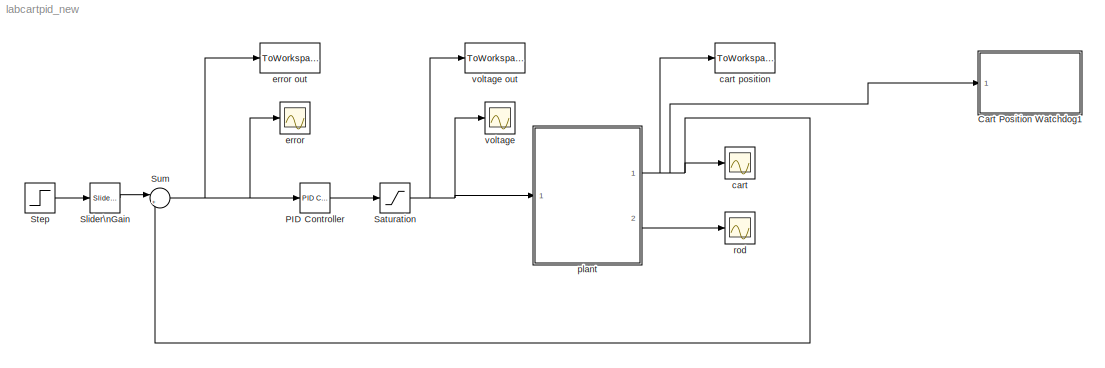
MODEL labcartpid_new
KIND model
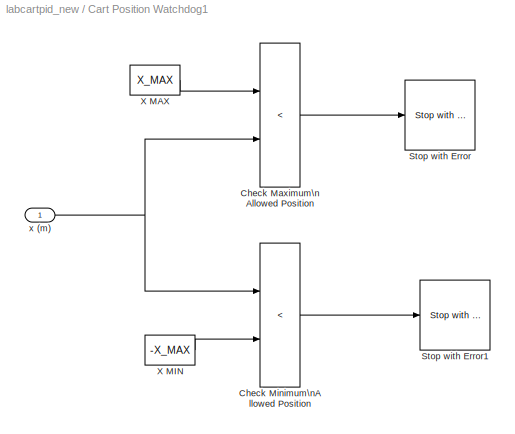
BLOCK [SubSystem] Cart Position Watchdog1
  Ports = [1]
  RequestExecContextInheritance = off
  SID = 48
  TreatAsAtomicUnit = on
BLOCK [RelationalOperator] Cart Position Watchdog1/Check Maximum\nAllowed Position
  Operator = <
  Ports = [2, 1]
  SID = 51
BLOCK [RelationalOperator] Cart Position Watchdog1/Check Minimum\nAllowed Position
  Operator = <
  Ports = [2, 1]
  SID = 52
BLOCK [Reference] Cart Position Watchdog1/Stop with Error  REF=quarc_library/Sinks/Error Handling/Stop with Error
  AttributesFormatString = \"%<message>\"
  MultiThreadCoSim = auto
  Ports = [1]
  SID = 53
  SourceBlock = quarc_library/Sinks/Error Handling/Stop with Error
  SourceProductName = QUARC Targets
  SourceType = Stop with Error
  message = Maximum Limit Reached
  message_type = Fixed error message
BLOCK [Reference] Cart Position Watchdog1/Stop with Error1  REF=quarc_library/Sinks/Error Handling/Stop with Error
  AttributesFormatString = \"%<message>\"
  MultiThreadCoSim = auto
  Ports = [1]
  SID = 54
  SourceBlock = quarc_library/Sinks/Error Handling/Stop with Error
  SourceProductName = QUARC Targets
  SourceType = Stop with Error
  message = Minimum Limit Reached
  message_type = Fixed error message
BLOCK [Constant] Cart Position Watchdog1/X MAX
  SID = 55
  Value = X_MAX
BLOCK [Constant] Cart Position Watchdog1/X MIN
  SID = 56
  Value = -X_MAX
BLOCK [Inport] Cart Position Watchdog1/x (m)
  SID = 49
BLOCK [Reference] PID Controller  REF=simulink_need_slupdate/PID Controller
  D = 10
  I = 2
  P = 80
  Ports = [1, 1]
  RTWMemSecDataConstants = Inherit from model
  RTWMemSecDataInternal = Inherit from model
  RTWMemSecDataParameters = Inherit from model
  RTWMemSecFuncExecute = Inherit from model
  RTWMemSecFuncInitTerm = Inherit from model
  SID = 1
  SourceBlock = simulink_need_slupdate/PID Controller
  SourceProductBaseCode = SL
  SourceType = PID Controller
BLOCK [Saturate] Saturation
  LowerLimit = -6
  SID = 2
  UpperLimit = 6
BLOCK [Reference] Slider\nGain  REF=simulink/Math\nOperations/Slider\nGain
  Ports = [1, 1]
  RTWMemSecDataConstants = Inherit from model
  RTWMemSecDataInternal = Inherit from model
  RTWMemSecDataParameters = Inherit from model
  RTWMemSecFuncExecute = Inherit from model
  RTWMemSecFuncInitTerm = Inherit from model
  SID = 3
  SourceBlock = simulink/Math\nOperations/Slider\nGain
  SourceProductBaseCode = SL
  SourceType = Slider Gain
  gain = 0.500
  high = 0.5
  low = -0.2
BLOCK [Step] Step
  After = 1.0
  SID = 4
  SampleTime = 0
  Time = 0
BLOCK [Sum] Sum
  Inputs = |+-
  Ports = [2, 1]
  SID = 5
BLOCK [Scope] cart
  Floating = off
  NumInputPorts = 1
  Ports = [1]
  SID = 6
  ScopeSpecificationString = Simulink.scopes.TimeScopeBlockCfg('CurrentConfiguration', extmgr.ConfigurationSet(extmgr.Configuration('Core','General UI',true),extmgr.Configuration('Core','Source UI',true),extmgr.Configuration('Sources','WiredSimulink',true,'DataLoggingSaveFormat','StructureWithTime','DataLoggingDecimation','1','DataLogging',true,'DataLoggingVariableName','Cartposition'),extmgr.Configuration('Visuals','Time Dom...<+1683ch>
BLOCK [ToWorkspace] cart position
  MaxDataPoints = inf
  Ports = [1]
  SID = 7
  SampleTime = -1
  SaveFormat = Structure With Time
  VariableName = y
BLOCK [Scope] error
  Floating = off
  NumInputPorts = 1
  Ports = [1]
  SID = 8
  ScopeSpecificationString = Simulink.scopes.TimeScopeBlockCfg('CurrentConfiguration', extmgr.ConfigurationSet(extmgr.Configuration('Core','General UI',true),extmgr.Configuration('Core','Source UI',true),extmgr.Configuration('Sources','WiredSimulink',true,'DataLoggingVariableName','ScopeData3','DataLoggingSaveFormat','StructureWithTime','DataLoggingLimitDataPoints',true,'DataLoggingDecimation','1','DataLoggingDecimateData',tr...<+910ch>
BLOCK [ToWorkspace] error out
  MaxDataPoints = inf
  Ports = [1]
  SID = 9
  SampleTime = -1
  SaveFormat = Structure
  VariableName = e
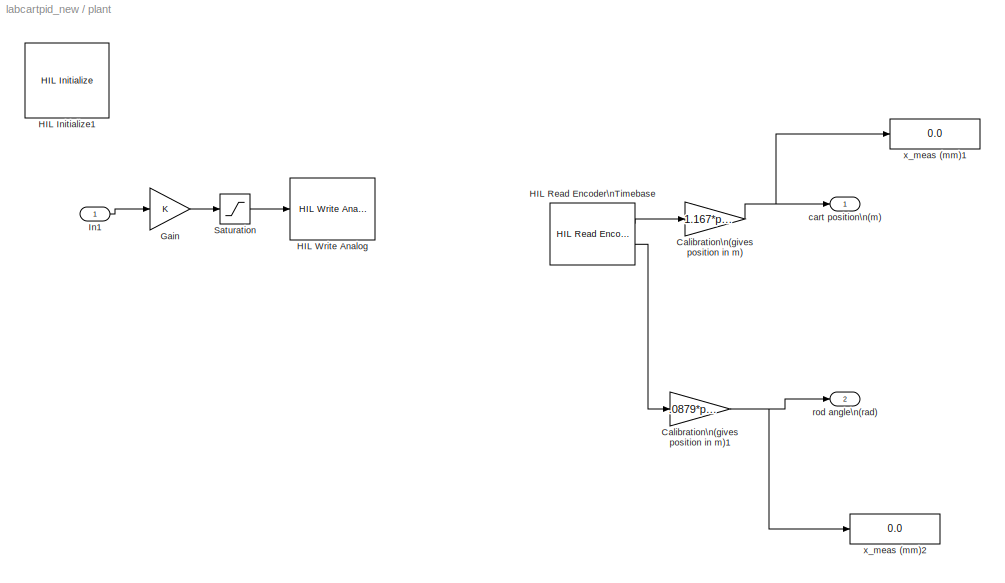
BLOCK [SubSystem] plant
  Ports = [1, 2]
  RequestExecContextInheritance = off
  SID = 10
BLOCK [Gain] plant/Calibration\n(gives position in  m)
  Gain = 1.167*pi*2.54/4096/100
  OutDataTypeStr = Inherit: Same as input
  ParamDataTypeStr = Inherit: Same as input
  SID = 37
  SaturateOnIntegerOverflow = on
BLOCK [Gain] plant/Calibration\n(gives position in  m)1
  Gain = .0879*pi/180
  OutDataTypeStr = Inherit: Same as input
  ParamDataTypeStr = Inherit: Same as input
  SID = 38
  SaturateOnIntegerOverflow = on
BLOCK [Gain] plant/Gain
  OutDataTypeStr = Inherit: Same as input
  ParamDataTypeStr = Inherit: Same as input
  SID = 39
  SaturateOnIntegerOverflow = on
BLOCK [Reference] plant/HIL Initialize1  REF=quarc_library/Data Acquisition/Generic/Configuration/HIL Initialize
  AttributesFormatString = %<object_name> (%<board_type>-%<board_number>)
  MultiThreadCoSim = auto
  Ports = []
  SID = 40
  SourceBlock = quarc_library/Data Acquisition/Generic/Configuration/HIL Initialize
  SourceProductName = QUARC Targets
  SourceType = HIL Initialize
  UserData = DataTag0
  UserDataPersistent = on
  active = off
  analog_input_channels = [0:3]
  analog_input_configurations = []
  analog_input_maximums = 10
  analog_input_minimums = -10
  analog_output_channels = [0:3]
  analog_output_maximums = [10]
  analog_output_minimums = [-10]
  board_number = 0
  board_type = q4
  clock_modes = [0 0]
  digital_input_channels = [8:15]
  digital_output_channels = [0:7]
  digital_output_configuration = []
  encoder_channels = [0:3]
  encoder_filter_frequency = (1/60e-9)/1
  exclusive = off
  final_analog_outputs = [0]
  final_digital_outputs = [0]
  final_other_outputs = []
  final_pwm_outputs = [0]
  hardware_clocks = [0:1]
  initial_analog_outputs = [0]
  initial_clock_frequencies = []
  initial_digital_outputs = [0]
  initial_encoder_counts = [0]
  initial_other_outputs = []
  initial_pwm_outputs = [0]
  object_name = HIL-1
  other_output_channels = []
  pwm_alignment = []
  pwm_channels = []
  pwm_configuration = []
  pwm_frequency = (1/60e-9)/1024
  pwm_leading_deadband = []
  pwm_modes = [0]
  pwm_polarity = []
  pwm_trailing_deadband = []
  quadrature = [4]
  set_analog_input_params_at_start = off
  set_analog_input_params_at_switch_in = off
  set_analog_output_params_at_start = on
  set_analog_output_params_at_switch_in = off
  set_analog_outputs_at_start = on
  set_analog_outputs_at_switch_in = off
  set_analog_outputs_at_switch_out = off
  set_analog_outputs_at_terminate = on
  set_analog_outputs_on_watchdog = off
  set_clock_frequencies_at_start = off
  set_clock_frequencies_at_switch_in = off
  set_clock_params_at_start = on
  set_clock_params_at_switch_in = off
  set_digital_output_params_at_start = off
  set_digital_output_params_at_switch_in = off
  set_digital_outputs_at_start = on
  set_digital_outputs_at_switch_in = off
  set_digital_outputs_at_switch_out = off
  set_digital_outputs_at_terminate = on
  set_digital_outputs_on_watchdog = off
  set_encoder_counts_at_start = on
  set_encoder_counts_at_switch_in = off
  set_encoder_params_at_start = on
  set_encoder_params_at_switch_in = off
  set_other_outputs_at_start = off
  set_other_outputs_at_switch_in = off
  set_other_outputs_at_switch_out = off
  set_other_outputs_at_terminate = off
  set_other_outputs_on_watchdog = off
  set_pwm_outputs_at_start = on
  set_pwm_outputs_at_switch_in = off
  set_pwm_outputs_at_switch_out = off
  set_pwm_outputs_at_terminate = on
  set_pwm_outputs_on_watchdog = off
  set_pwm_params_at_start = on
  set_pwm_params_at_switch_in = off
  watchdog_analog_outputs = 0
  watchdog_digital_outputs = [2]
  watchdog_other_outputs = []
  watchdog_pwm_outputs = []
BLOCK [Reference] plant/HIL Read Encoder\nTimebase  REF=quarc_library/Data Acquisition/Generic/Timebases/HIL Read Encoder\nTimebase
  AttributesFormatString = (%<object_name>)
  MultiThreadCoSim = auto
  Ports = [0, 2]
  SID = 41
  SourceBlock = quarc_library/Data Acquisition/Generic/Timebases/HIL Read Encoder\nTimebase
  SourceProductName = QUARC Targets
  SourceType = HIL Read Encoder Timebase
  UserData = DataTag1
  UserDataPersistent = on
  active = on
  channels = [0,1]
  clock = 1
  data_type = double
  data_type_mode = Inherit via back propagation
  object_name = HIL-1
  overflow_mode = Error on overflow
  samples_in_buffer = max(ceil(1/qc_get_step_size), 1)
  vector_output = off
BLOCK [Reference] plant/HIL Write Analog  REF=quarc_library/Data Acquisition/Generic/Immediate I//O/HIL Write Analog
  AttributesFormatString = (%<object_name>)
  MultiThreadCoSim = auto
  Ports = [1]
  SID = 42
  SourceBlock = quarc_library/Data Acquisition/Generic/Immediate I//O/HIL Write Analog
  SourceProductName = QUARC Targets
  SourceType = HIL Write Analog
  UserData = DataTag2
  UserDataPersistent = on
  active = off
  channels = 0
  object_name = HIL-1
  sample_time = -1
  vector_input = on
BLOCK [Inport] plant/In1
  SID = 36
BLOCK [Saturate] plant/Saturation
  LowerLimit = -6
  SID = 43
  UpperLimit = 6
BLOCK [Outport] plant/cart position\n(m)
  SID = 46
BLOCK [Outport] plant/rod angle\n(rad)
  Port = 2
  SID = 47
BLOCK [Display] plant/x_meas (mm)1
  Decimation = 100
  Ports = [1]
  SID = 44
BLOCK [Display] plant/x_meas (mm)2
  Decimation = 100
  Ports = [1]
  SID = 45
BLOCK [Scope] rod
  Floating = off
  NumInputPorts = 1
  Ports = [1]
  SID = 21
  ScopeSpecificationString = Simulink.scopes.TimeScopeBlockCfg('CurrentConfiguration', extmgr.ConfigurationSet(extmgr.Configuration('Core','General UI',true),extmgr.Configuration('Core','Source UI',true),extmgr.Configuration('Sources','WiredSimulink',true,'DataLoggingVariableName','ScopeData1','DataLoggingSaveFormat','StructureWithTime','DataLoggingDecimation','1','DataLoggingDecimateData',true,'DataLogging',true),extmgr.Conf...<+1689ch>
BLOCK [Scope] voltage
  Floating = off
  NumInputPorts = 1
  Ports = [1]
  SID = 22
  ScopeSpecificationString = Simulink.scopes.TimeScopeBlockCfg('CurrentConfiguration', extmgr.ConfigurationSet(extmgr.Configuration('Core','General UI',true),extmgr.Configuration('Core','Source UI',true),extmgr.Configuration('Sources','WiredSimulink',true,'DataLoggingVariableName','ScopeData2','DataLoggingSaveFormat','StructureWithTime','DataLoggingLimitDataPoints',true,'DataLoggingDecimation','1','DataLoggingDecimateData',tr...<+910ch>
BLOCK [ToWorkspace] voltage out
  MaxDataPoints = inf
  Ports = [1]
  SID = 23
  SampleTime = -1
  SaveFormat = Structure
  VariableName = v
LINE Cart Position Watchdog1/Check Maximum\nAllowed Position:1 -> Cart Position Watchdog1/Stop with Error:1
LINE Cart Position Watchdog1/Check Minimum\nAllowed Position:1 -> Cart Position Watchdog1/Stop with Error1:1
LINE Cart Position Watchdog1/X MAX:1 -> Cart Position Watchdog1/Check Maximum\nAllowed Position:1
LINE Cart Position Watchdog1/X MIN:1 -> Cart Position Watchdog1/Check Minimum\nAllowed Position:2
NET Cart Position Watchdog1/x (m):1 -> Cart Position Watchdog1/Check Maximum\nAllowed Position:2, Cart Position Watchdog1/Check Minimum\nAllowed Position:1
LINE PID Controller:1 -> Saturation:1
NET Saturation:1 -> plant:1, voltage out:1, voltage:1
LINE Slider\nGain:1 -> Sum:1
LINE Step:1 -> Slider\nGain:1
NET Sum:1 -> PID Controller:1, error out:1, error:1
NET plant/Calibration\n(gives position in  m)1:1 -> plant/rod angle\n(rad):1, plant/x_meas (mm)2:1
NET plant/Calibration\n(gives position in  m):1 -> plant/cart position\n(m):1, plant/x_meas (mm)1:1
LINE plant/Gain:1 -> plant/Saturation:1
LINE plant/HIL Read Encoder\nTimebase:1 -> plant/Calibration\n(gives position in  m):1
LINE plant/HIL Read Encoder\nTimebase:2 -> plant/Calibration\n(gives position in  m)1:1
LINE plant/In1:1 -> plant/Gain:1
LINE plant/Saturation:1 -> plant/HIL Write Analog:1
NET plant:1 -> Cart Position Watchdog1:1, Sum:2, cart position:1, cart:1
LINE plant:2 -> rod:1
note: NET lines group one-source signal fan-out (src -> all destinations, sorted); 1:1 wires keep LINE
